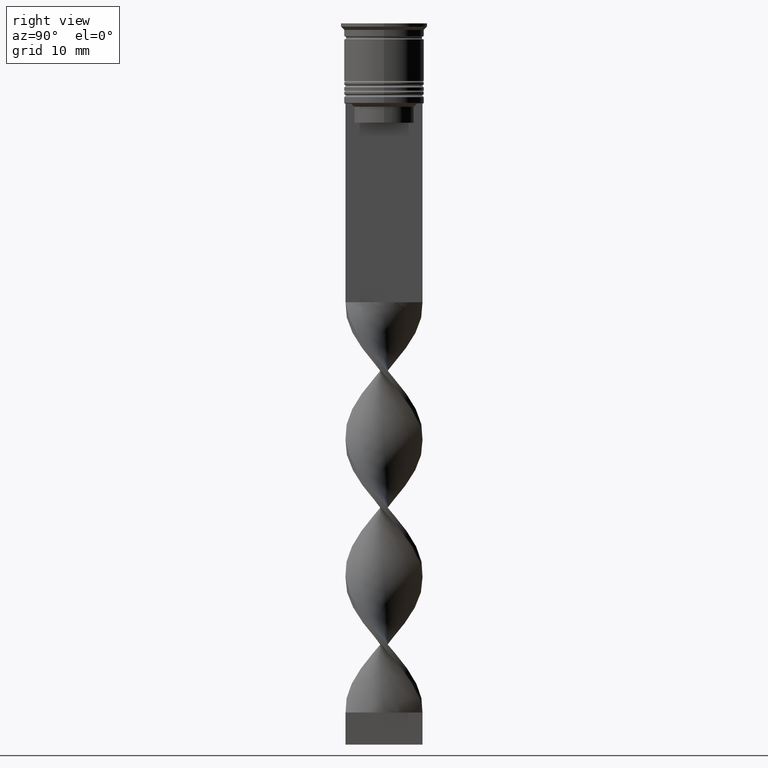
[diagram: clean part render]
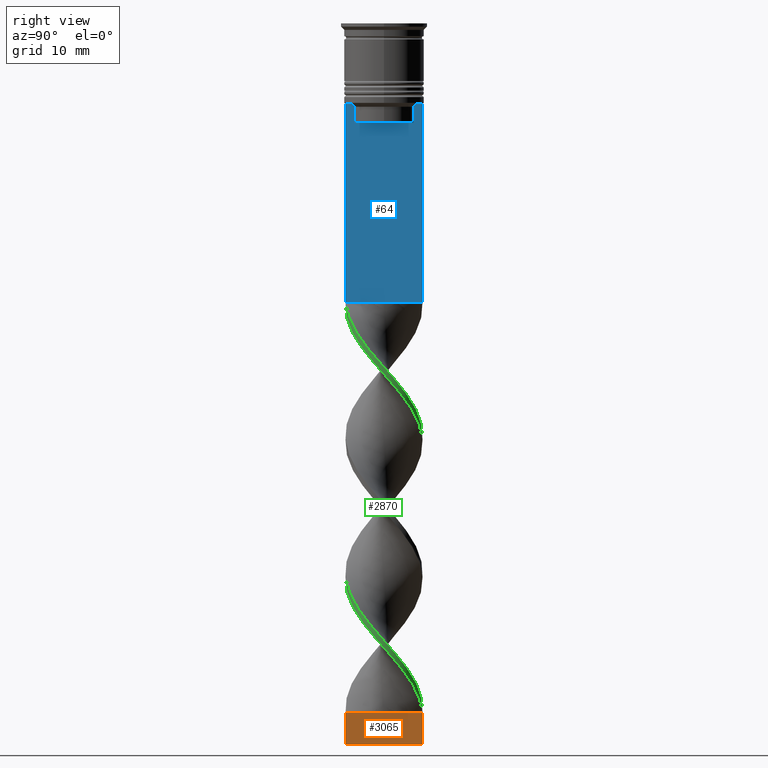
[diagram: same view with three faces highlighted in distinct colors, each labeled with its STEP entity id]
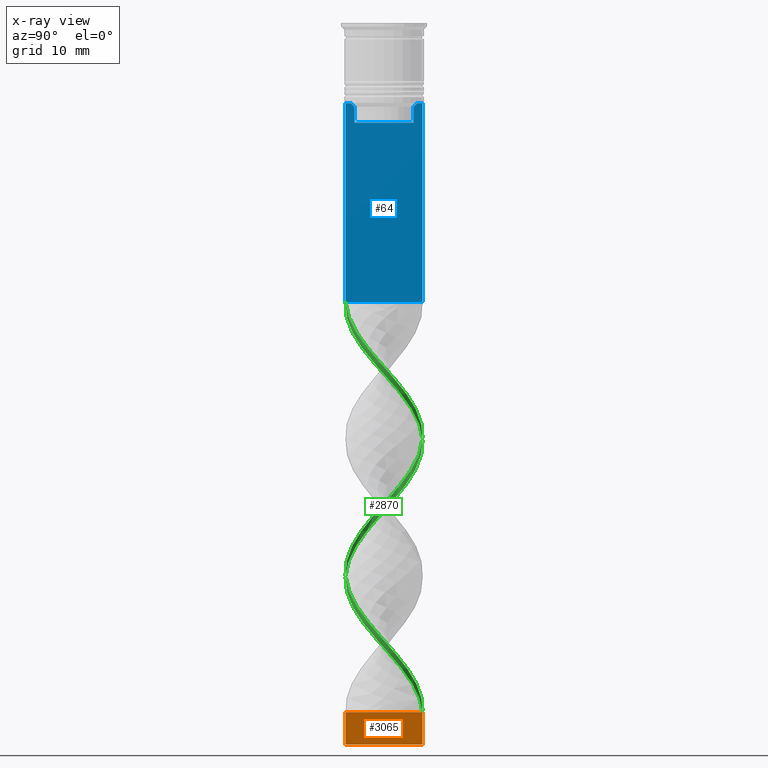
[diagram: x-ray of the same camera — body ghosted, the three highlighted faces saturated]
A machine part, right view with three faces highlighted in distinct colors.
The next image is the same camera in x-ray (body ghosted, the three faces saturated) — at least one of them is partly hidden behind the body in this view.
Their STEP definitions:

[orange] entity #3065 — the highlighted planar face has unit normal (-1, 0, 0).
#14 = EDGE_CURVE ( 'NONE', #60, #1473, #771, .T. ) ;
#32 = VECTOR ( 'NONE', #165, 1000.000000000000000 ) ;
#38 = CARTESIAN_POINT ( 'NONE',  ( 0.4999999999999990563, -6.000000000000000000, -112.5000000000000000 ) ) ;
#60 = VERTEX_POINT ( 'NONE', #104 ) ;
#104 = CARTESIAN_POINT ( 'NONE',  ( 0.5000000000000005551, 6.000000000000000000, -112.5000000000000000 ) ) ;
#165 = DIRECTION ( 'NONE',  ( -1.264902534566421675E-16, -1.000000000000000000, 0.000000000000000000 ) ) ;
#330 = AXIS2_PLACEMENT_3D ( 'NONE', #2009, #3090, #2868 ) ;
#436 = EDGE_CURVE ( 'NONE', #60, #448, #1466, .T. ) ;
#448 = VERTEX_POINT ( 'NONE', #2053 ) ;
#771 = LINE ( 'NONE', #1843, #1736 ) ;
#914 = PLANE ( 'NONE',  #330 ) ;
#1127 = DIRECTION ( 'NONE',  ( -0.000000000000000000, -0.000000000000000000, 1.000000000000000000 ) ) ;
#1221 = CARTESIAN_POINT ( 'NONE',  ( 0.5000000000000000000, 2.000000000000000000, -107.5000000000000000 ) ) ;
#1301 = DIRECTION ( 'NONE',  ( -0.000000000000000000, -0.000000000000000000, 1.000000000000000000 ) ) ;
#1466 = LINE ( 'NONE', #2308, #32 ) ;
#1473 = VERTEX_POINT ( 'NONE', #2409 ) ;
#1477 = CARTESIAN_POINT ( 'NONE',  ( 0.4999999999999990563, -6.000000000000000000, -107.5000000000000000 ) ) ;
#1736 = VECTOR ( 'NONE', #1301, 1000.000000000000000 ) ;
#1770 = ORIENTED_EDGE ( 'NONE', *, *, #14, .T. ) ;
#1781 = CARTESIAN_POINT ( 'NONE',  ( 0.5000000000000005551, 6.000000000000000000, -107.5000000000000000 ) ) ;
#1843 = CARTESIAN_POINT ( 'NONE',  ( 0.5000000000000005551, 6.000000000000000000, -112.5000000000000000 ) ) ;
#2009 = CARTESIAN_POINT ( 'NONE',  ( 0.5000000000000005551, 6.000000000000000000, -112.5000000000000000 ) ) ;
#2053 = CARTESIAN_POINT ( 'NONE',  ( 0.4999999999999990563, -6.000000000000000000, -112.5000000000000000 ) ) ;
#2086 = EDGE_CURVE ( 'NONE', #1473, #2617, #2331, .T. ) ;
#2091 = CARTESIAN_POINT ( 'NONE',  ( 0.4999999999999995559, -2.000000000000000000, -107.5000000000000000 ) ) ;
#2098 = VECTOR ( 'NONE', #1127, 1000.000000000000000 ) ;
#2252 = FACE_OUTER_BOUND ( 'NONE', #2817, .T. ) ;
#2308 = CARTESIAN_POINT ( 'NONE',  ( 0.5000000000000005551, 6.000000000000000000, -112.5000000000000000 ) ) ;
#2331 = B_SPLINE_CURVE_WITH_KNOTS ( 'NONE', 3,
 ( #1781, #1221, #2091, #2861 ),
 .UNSPECIFIED., .F., .F.,
 ( 4, 4 ),
 ( 0.000000000000000000, 1.000000000000000000 ),
 .UNSPECIFIED. ) ;
#2409 = CARTESIAN_POINT ( 'NONE',  ( 0.5000000000000005551, 6.000000000000000000, -107.5000000000000000 ) ) ;
#2617 = VERTEX_POINT ( 'NONE', #1477 ) ;
#2817 = EDGE_LOOP ( 'NONE', ( #3267, #2842, #3185, #1770 ) ) ;
#2842 = ORIENTED_EDGE ( 'NONE', *, *, #3398, .F. ) ;
#2861 = CARTESIAN_POINT ( 'NONE',  ( 0.4999999999999990563, -6.000000000000000000, -107.5000000000000000 ) ) ;
#2868 = DIRECTION ( 'NONE',  ( -1.264902534566421675E-16, -1.000000000000000000, 0.000000000000000000 ) ) ;
#3065 = ADVANCED_FACE ( 'NONE', ( #2252 ), #914, .F. ) ;
#3090 = DIRECTION ( 'NONE',  ( -1.000000000000000000, 1.264902534566421675E-16, 0.000000000000000000 ) ) ;
#3185 = ORIENTED_EDGE ( 'NONE', *, *, #436, .F. ) ;
#3267 = ORIENTED_EDGE ( 'NONE', *, *, #2086, .T. ) ;
#3302 = LINE ( 'NONE', #38, #2098 ) ;
#3398 = EDGE_CURVE ( 'NONE', #448, #2617, #3302, .T. ) ;

[blue] entity #64 — the highlighted planar face has unit normal (-1, 0, 0).
#25 = CARTESIAN_POINT ( 'NONE',  ( 0.5000000000000002220, -4.958169719475986170, -12.66670967060858111 ) ) ;
#62 = DIRECTION ( 'NONE',  ( 0.000000000000000000, -1.000000000000000000, 0.000000000000000000 ) ) ;
#64 = ADVANCED_FACE ( 'NONE', ( #683 ), #132, .F. ) ;
#85 = DIRECTION ( 'NONE',  ( 0.000000000000000000, -1.000000000000000000, 0.000000000000000000 ) ) ;
#132 = PLANE ( 'NONE',  #2364 ) ;
#157 = ORIENTED_EDGE ( 'NONE', *, *, #474, .T. ) ;
#172 = EDGE_LOOP ( 'NONE', ( #3371, #1901, #1513, #1337, #3414, #1471, #3104, #157, #2833, #1909 ) ) ;
#182 = CARTESIAN_POINT ( 'NONE',  ( 0.5000000000000002220, -6.000000000000000000, -0.4584054212077061097 ) ) ;
#204 = VERTEX_POINT ( 'NONE', #834 ) ;
#205 = CARTESIAN_POINT ( 'NONE',  ( 0.5000000000000002220, -4.623040125285526436, -13.00000000000000178 ) ) ;
#221 = DIRECTION ( 'NONE',  ( 0.000000000000000000, 0.000000000000000000, -1.000000000000000000 ) ) ;
#246 = LINE ( 'NONE', #2479, #1234 ) ;
#253 = CARTESIAN_POINT ( 'NONE',  ( 0.5000000000000002220, 4.623040125285526436, -13.00000000000000178 ) ) ;
#387 = VECTOR ( 'NONE', #85, 1000.000000000000000 ) ;
#474 = EDGE_CURVE ( 'NONE', #3131, #204, #3153, .T. ) ;
#590 = CARTESIAN_POINT ( 'NONE',  ( 0.5000000000000002220, 4.958169823806760412, -12.66670956677067927 ) ) ;
#663 = VERTEX_POINT ( 'NONE', #792 ) ;
#680 = LINE ( 'NONE', #1184, #3169 ) ;
#683 = FACE_OUTER_BOUND ( 'NONE', #172, .T. ) ;
#695 = EDGE_CURVE ( 'NONE', #2570, #1968, #1556, .T. ) ;
#753 = CARTESIAN_POINT ( 'NONE',  ( 0.5000000000000002220, -6.000000000000000000, -12.50000000000000000 ) ) ;
#784 = EDGE_CURVE ( 'NONE', #1968, #2849, #1783, .T. ) ;
#792 = CARTESIAN_POINT ( 'NONE',  ( 0.5000000000000002220, -5.125670687822231564, -12.50000000000000000 ) ) ;
#834 = CARTESIAN_POINT ( 'NONE',  ( 0.5000000000000002220, -5.999999999999999112, -43.50000000000000000 ) ) ;
#835 = DIRECTION ( 'NONE',  ( -0.000000000000000000, -0.000000000000000000, 1.000000000000000000 ) ) ;
#896 = CARTESIAN_POINT ( 'NONE',  ( 0.5000000000000002220, 4.790630915080664742, -12.83338087185995491 ) ) ;
#1065 = VERTEX_POINT ( 'NONE', #205 ) ;
#1093 = LINE ( 'NONE', #2504, #2725 ) ;
#1144 = EDGE_CURVE ( 'NONE', #1505, #1065, #1093, .T. ) ;
#1148 = CARTESIAN_POINT ( 'NONE',  ( 0.5000000000000002220, -5.125670687822231564, -12.50000000000000000 ) ) ;
#1184 = CARTESIAN_POINT ( 'NONE',  ( 0.5000000000000002220, -6.000000000000000000, -43.50000000000000000 ) ) ;
#1198 = EDGE_CURVE ( 'NONE', #1065, #663, #3321, .T. ) ;
#1234 = VECTOR ( 'NONE', #1669, 1000.000000000000000 ) ;
#1314 = CARTESIAN_POINT ( 'NONE',  ( 0.5000000000000002220, -6.000000000000000000, -0.4584054212077061097 ) ) ;
#1337 = ORIENTED_EDGE ( 'NONE', *, *, #1408, .T. ) ;
#1365 = CARTESIAN_POINT ( 'NONE',  ( 0.5000000000000002220, 5.125670687822231564, -12.50000000000000000 ) ) ;
#1408 = EDGE_CURVE ( 'NONE', #2854, #1505, #2803, .T. ) ;
#1427 = CARTESIAN_POINT ( 'NONE',  ( 0.5000000000000002220, 4.650000000000001243, -15.50000000000000000 ) ) ;
#1471 = ORIENTED_EDGE ( 'NONE', *, *, #1198, .T. ) ;
#1505 = VERTEX_POINT ( 'NONE', #1824 ) ;
#1513 = ORIENTED_EDGE ( 'NONE', *, *, #2964, .T. ) ;
#1556 = LINE ( 'NONE', #2650, #2662 ) ;
#1669 = DIRECTION ( 'NONE',  ( 0.000000000000000000, 0.000000000000000000, -1.000000000000000000 ) ) ;
#1716 = DIRECTION ( 'NONE',  ( 0.000000000000000000, 1.000000000000000000, 0.000000000000000000 ) ) ;
#1727 = CARTESIAN_POINT ( 'NONE',  ( 0.5000000000000002220, 5.125670687822231564, -12.50000000000000000 ) ) ;
#1783 = B_SPLINE_CURVE_WITH_KNOTS ( 'NONE', 3,
 ( #1365, #590, #896, #1954 ),
 .UNSPECIFIED., .F., .F.,
 ( 4, 4 ),
 ( 0.008759809102772709091, 0.009468778395565353653 ),
 .UNSPECIFIED. ) ;
#1824 = CARTESIAN_POINT ( 'NONE',  ( 0.5000000000000002220, -4.623040125285526436, -15.50000000000000000 ) ) ;
#1884 = EDGE_CURVE ( 'NONE', #663, #3131, #2506, .T. ) ;
#1901 = ORIENTED_EDGE ( 'NONE', *, *, #784, .T. ) ;
#1908 = CARTESIAN_POINT ( 'NONE',  ( 0.5000000000000002220, -4.623040125285526436, -13.00000000000000178 ) ) ;
#1909 = ORIENTED_EDGE ( 'NONE', *, *, #3375, .F. ) ;
#1951 = CARTESIAN_POINT ( 'NONE',  ( 0.5000000000000002220, -6.000000000000000000, -12.50000000000000000 ) ) ;
#1954 = CARTESIAN_POINT ( 'NONE',  ( 0.5000000000000002220, 4.623040125285526436, -13.00000000000000178 ) ) ;
#1968 = VERTEX_POINT ( 'NONE', #1727 ) ;
#1975 = LINE ( 'NONE', #2524, #2783 ) ;
#2364 = AXIS2_PLACEMENT_3D ( 'NONE', #1314, #2973, #2413 ) ;
#2413 = DIRECTION ( 'NONE',  ( 0.000000000000000000, 0.000000000000000000, 1.000000000000000000 ) ) ;
#2414 = CARTESIAN_POINT ( 'NONE',  ( 0.5000000000000002220, 6.000000000000000888, -43.50000000000000000 ) ) ;
#2443 = CARTESIAN_POINT ( 'NONE',  ( 0.5000000000000002220, 4.623040125285526436, -15.50000000000000000 ) ) ;
#2462 = CARTESIAN_POINT ( 'NONE',  ( 0.5000000000000002220, -4.790630799407577634, -12.83338098686238915 ) ) ;
#2479 = CARTESIAN_POINT ( 'NONE',  ( 0.5000000000000002220, 6.000000000000000888, -0.4584054212077061097 ) ) ;
#2504 = CARTESIAN_POINT ( 'NONE',  ( 0.5000000000000002220, -4.623040125285526436, 0.000000000000000000 ) ) ;
#2506 = LINE ( 'NONE', #1951, #3059 ) ;
#2524 = CARTESIAN_POINT ( 'NONE',  ( 0.5000000000000002220, 4.623040125285526436, 0.000000000000000000 ) ) ;
#2570 = VERTEX_POINT ( 'NONE', #3362 ) ;
#2650 = CARTESIAN_POINT ( 'NONE',  ( 0.5000000000000002220, -6.000000000000000000, -12.50000000000000000 ) ) ;
#2662 = VECTOR ( 'NONE', #3481, 1000.000000000000000 ) ;
#2725 = VECTOR ( 'NONE', #835, 1000.000000000000000 ) ;
#2783 = VECTOR ( 'NONE', #2851, 1000.000000000000000 ) ;
#2803 = LINE ( 'NONE', #1427, #387 ) ;
#2833 = ORIENTED_EDGE ( 'NONE', *, *, #2934, .T. ) ;
#2849 = VERTEX_POINT ( 'NONE', #253 ) ;
#2851 = DIRECTION ( 'NONE',  ( 0.000000000000000000, 0.000000000000000000, -1.000000000000000000 ) ) ;
#2854 = VERTEX_POINT ( 'NONE', #2443 ) ;
#2934 = EDGE_CURVE ( 'NONE', #204, #3461, #680, .T. ) ;
#2964 = EDGE_CURVE ( 'NONE', #2849, #2854, #1975, .T. ) ;
#2973 = DIRECTION ( 'NONE',  ( -1.000000000000000000, 0.000000000000000000, 0.000000000000000000 ) ) ;
#3059 = VECTOR ( 'NONE', #62, 1000.000000000000000 ) ;
#3104 = ORIENTED_EDGE ( 'NONE', *, *, #1884, .T. ) ;
#3131 = VERTEX_POINT ( 'NONE', #753 ) ;
#3153 = LINE ( 'NONE', #182, #3449 ) ;
#3169 = VECTOR ( 'NONE', #1716, 1000.000000000000000 ) ;
#3321 = B_SPLINE_CURVE_WITH_KNOTS ( 'NONE', 3,
 ( #1908, #2462, #25, #1148 ),
 .UNSPECIFIED., .F., .F.,
 ( 4, 4 ),
 ( 0.02203698174624554168, 0.02275222543365897770 ),
 .UNSPECIFIED. ) ;
#3362 = CARTESIAN_POINT ( 'NONE',  ( 0.5000000000000002220, 6.000000000000000888, -12.50000000000000000 ) ) ;
#3371 = ORIENTED_EDGE ( 'NONE', *, *, #695, .T. ) ;
#3375 = EDGE_CURVE ( 'NONE', #2570, #3461, #246, .T. ) ;
#3414 = ORIENTED_EDGE ( 'NONE', *, *, #1144, .T. ) ;
#3449 = VECTOR ( 'NONE', #221, 1000.000000000000000 ) ;
#3461 = VERTEX_POINT ( 'NONE', #2414 ) ;
#3481 = DIRECTION ( 'NONE',  ( 0.000000000000000000, -1.000000000000000000, 0.000000000000000000 ) ) ;

[green] entity #2870 — the highlighted face is a freeform B-spline surface patch.
#5 = CARTESIAN_POINT ( 'NONE',  ( 0.5000000000000005551, 6.000000000000000000, -107.5000000000000000 ) ) ;
#16 = CARTESIAN_POINT ( 'NONE',  ( 2.614197889543183884, 5.472697136436196708, -62.37179487179486870 ) ) ;
#21 = CARTESIAN_POINT ( 'NONE',  ( 5.221935568727516852, 2.996896547440106140, -100.9358974358974308 ) ) ;
#22 = CARTESIAN_POINT ( 'NONE',  ( 5.432795012591220996, 2.595137443597920424, -56.62820512820513130 ) ) ;
#30 = CARTESIAN_POINT ( 'NONE',  ( 5.787399899633756561, 1.660121200912505479, -99.29487179487178139 ) ) ;
#31 = CARTESIAN_POINT ( 'NONE',  ( -6.044068061194096231, -0.5036723384328406494, -75.50000000000000000 ) ) ;
#36 = CARTESIAN_POINT ( 'NONE',  ( 5.988975108237873712, -0.9574036273986643586, -52.52564102564103621 ) ) ;
#52 = CARTESIAN_POINT ( 'NONE',  ( 2.345611019436006472, 5.545097739941142301, -61.55128205128204399 ) ) ;
#57 = CARTESIAN_POINT ( 'NONE',  ( -4.858046446425391629, 3.630954320453866568, -70.57692307692306599 ) ) ;
#67 = CARTESIAN_POINT ( 'NONE',  ( 4.190053366537507706, 4.384962638200772034, -59.08974358974358410 ) ) ;
#75 = CARTESIAN_POINT ( 'NONE',  ( -0.4999999999999997780, -6.000000000000000000, -43.50000000000000000 ) ) ;
#82 = CARTESIAN_POINT ( 'NONE',  ( 0.5000000000000002220, -5.999999999999999112, -86.16666666666667140 ) ) ;
#126 = CARTESIAN_POINT ( 'NONE',  ( 4.352991323530322809, 4.159503159906207337, -59.91025641025640880 ) ) ;
#149 = CARTESIAN_POINT ( 'NONE',  ( -2.345611019436010025, -5.545097739941143189, -82.88461538461537259 ) ) ;
#170 = CARTESIAN_POINT ( 'NONE',  ( 2.345611019436006028, -5.545097739941144077, -46.78205128205127750 ) ) ;
#174 = CARTESIAN_POINT ( 'NONE',  ( 5.747901747727228283, 1.935476698729089007, -98.47435897435896379 ) ) ;
#191 = CARTESIAN_POINT ( 'NONE',  ( 3.847936200635250437, -4.688051999358553878, -90.26923076923075939 ) ) ;
#200 = CARTESIAN_POINT ( 'NONE',  ( 3.604480575359220396, -4.822625818147004750, -48.42307692307691269 ) ) ;
#204 = VERTEX_POINT ( 'NONE', #834 ) ;
#207 = CARTESIAN_POINT ( 'NONE',  ( 4.653870821996361151, 3.819880413333762714, -100.9358974358974308 ) ) ;
#217 = CARTESIAN_POINT ( 'NONE',  ( 0.5000000000000002220, -5.999999999999999112, -43.50000000000000000 ) ) ;
#224 = CARTESIAN_POINT ( 'NONE',  ( -5.585824691029640299, -2.362838774426345712, -78.78205128205127039 ) ) ;
#230 = CARTESIAN_POINT ( 'NONE',  ( 0.9504230770123207606, -5.945308736700090968, -45.14102564102563520 ) ) ;
#238 = CARTESIAN_POINT ( 'NONE',  ( -1.228531899333566768, -5.939289008388869640, -85.34615384615385381 ) ) ;
#252 = CARTESIAN_POINT ( 'NONE',  ( 4.352991323530322809, 4.159503159906207337, -102.5769230769230660 ) ) ;
#260 = CARTESIAN_POINT ( 'NONE',  ( 6.044068061194097119, -0.5036723384328415376, -96.83333333333332860 ) ) ;
#266 = CARTESIAN_POINT ( 'NONE',  ( -5.895984904460662257, 1.219574518580968325, -74.67948717948718240 ) ) ;
#281 = VERTEX_POINT ( 'NONE', #934 ) ;
#282 = CARTESIAN_POINT ( 'NONE',  ( 3.604480575359220396, -4.822625818147004750, -91.08974358974359120 ) ) ;
#283 = CARTESIAN_POINT ( 'NONE',  ( 2.614197889543182107, -5.472697136436196708, -45.96153846153845990 ) ) ;
#286 = CARTESIAN_POINT ( 'NONE',  ( 5.432795012591220107, -2.595137443597922200, -94.37179487179486159 ) ) ;
#287 = CARTESIAN_POINT ( 'NONE',  ( 3.604480575359221728, 4.822625818147002974, -59.91025641025640880 ) ) ;
#296 = CARTESIAN_POINT ( 'NONE',  ( -3.604480575359219507, 4.822625818147005639, -69.75641025641024839 ) ) ;
#298 = CARTESIAN_POINT ( 'NONE',  ( 1.228531899333563215, -5.939289008388868751, -86.98717948717948900 ) ) ;
#302 = CARTESIAN_POINT ( 'NONE',  ( 5.787399899633756561, -1.660121200912507478, -51.70512820512820440 ) ) ;
#312 = CARTESIAN_POINT ( 'NONE',  ( -5.432795012591220107, 2.595137443597922644, -73.03846153846153300 ) ) ;
#315 = CARTESIAN_POINT ( 'NONE',  ( 4.653870821996360263, 3.819880413333762270, -100.9358974358974308 ) ) ;
#320 = CARTESIAN_POINT ( 'NONE',  ( -3.847936200635249993, 4.688051999358554767, -68.93589743589743080 ) ) ;
#335 = CARTESIAN_POINT ( 'NONE',  ( 6.016521584715985860, 0.2268656444829105501, -97.65384615384614619 ) ) ;
#337 = CARTESIAN_POINT ( 'NONE',  ( -3.018907784180934861, -5.260288998093234802, -82.06410256410255499 ) ) ;
#352 = CARTESIAN_POINT ( 'NONE',  ( -1.228531899333561883, 5.939289008388868751, -65.65384615384614619 ) ) ;
#366 = CARTESIAN_POINT ( 'NONE',  ( 3.847936200635249993, -4.688051999358552990, -90.26923076923077360 ) ) ;
#421 = CARTESIAN_POINT ( 'NONE',  ( 3.604480575359220396, -4.822625818147004750, -48.42307692307691269 ) ) ;
#441 = CARTESIAN_POINT ( 'NONE',  ( 3.604480575359221728, 4.822625818147002974, -102.5769230769230660 ) ) ;
#466 = CARTESIAN_POINT ( 'NONE',  ( 5.221935568727516852, 2.996896547440106140, -58.26923076923076650 ) ) ;
#484 = CARTESIAN_POINT ( 'NONE',  ( 3.018907784180935305, 5.260288998093234802, -103.3974358974358694 ) ) ;
#496 = CARTESIAN_POINT ( 'NONE',  ( 5.221935568727516852, 2.996896547440106140, -58.26923076923076650 ) ) ;
#500 = CARTESIAN_POINT ( 'NONE',  ( -1.672314254691080304, -5.829906481789053352, -83.70512820512820440 ) ) ;
#514 = CARTESIAN_POINT ( 'NONE',  ( 1.921364894438374549, 5.705993072412533174, -63.19230769230768630 ) ) ;
#526 = CARTESIAN_POINT ( 'NONE',  ( 5.787399899633755673, -1.660121200912507033, -51.70512820512820440 ) ) ;
#531 = CARTESIAN_POINT ( 'NONE',  ( 0.5000000000000002220, -6.000000000000000000, -43.50000000000000000 ) ) ;
#545 = CARTESIAN_POINT ( 'NONE',  ( -3.018907784180933973, 5.260288998093236579, -68.93589743589743080 ) ) ;
#555 = CARTESIAN_POINT ( 'NONE',  ( -4.352991323530323697, -4.159503159906206449, -81.24358974358973740 ) ) ;
#561 = CARTESIAN_POINT ( 'NONE',  ( 0.2285318993335633819, -6.060710991611130360, -86.98717948717948900 ) ) ;
#575 = CARTESIAN_POINT ( 'NONE',  ( 3.018907784180934861, -5.260288998093235691, -90.26923076923075939 ) ) ;
#577 = CARTESIAN_POINT ( 'NONE',  ( 5.117688277455212820, 3.254798188466753395, -100.1153846153846132 ) ) ;
#592 = CARTESIAN_POINT ( 'NONE',  ( -5.895984904460662257, 1.219574518580968325, -74.67948717948718240 ) ) ;
#594 = CARTESIAN_POINT ( 'NONE',  ( -0.9504230770123257566, -5.945308736700090080, -84.52564102564103621 ) ) ;
#599 = CARTESIAN_POINT ( 'NONE',  ( -5.221935568727515964, 2.996896547440107472, -71.39743589743588359 ) ) ;
#608 = CARTESIAN_POINT ( 'NONE',  ( 5.221935568727516852, 2.996896547440106140, -100.9358974358974308 ) ) ;
#609 = CARTESIAN_POINT ( 'NONE',  ( 1.672314254691078972, 5.829906481789051576, -105.0384615384615188 ) ) ;
#630 = CARTESIAN_POINT ( 'NONE',  ( 5.432795012591220107, 2.595137443597919980, -99.29487179487178139 ) ) ;
#645 = CARTESIAN_POINT ( 'NONE',  ( -3.231067045089215384, 5.080374567897374405, -68.11538461538459899 ) ) ;
#689 = CARTESIAN_POINT ( 'NONE',  ( 2.614197889543183884, 5.472697136436196708, -62.37179487179486870 ) ) ;
#693 = CARTESIAN_POINT ( 'NONE',  ( -0.4999999999999994449, 6.000000000000000000, -107.5000000000000000 ) ) ;
#709 = CARTESIAN_POINT ( 'NONE',  ( 5.117688277455213708, -3.254798188466753839, -50.88461538461538680 ) ) ;
#730 = CARTESIAN_POINT ( 'NONE',  ( 5.988975108237873712, 0.9574036273986641365, -55.80769230769230660 ) ) ;
#747 = CARTESIAN_POINT ( 'NONE',  ( 5.117688277455213708, -3.254798188466753839, -50.88461538461537970 ) ) ;
#751 = CARTESIAN_POINT ( 'NONE',  ( -0.4999999999999997780, -6.000000000000000000, -43.50000000000000000 ) ) ;
#769 = CARTESIAN_POINT ( 'NONE',  ( 0.5000000000000002220, -6.000000000000000000, -86.16666666666667140 ) ) ;
#782 = CARTESIAN_POINT ( 'NONE',  ( -4.653870821996360263, 3.819880413333763158, -71.39743589743588359 ) ) ;
#783 = CARTESIAN_POINT ( 'NONE',  ( 4.653870821996361151, 3.819880413333762714, -58.26923076923076650 ) ) ;
#811 = CARTESIAN_POINT ( 'NONE',  ( 5.585824691029640299, 2.362838774426348376, -100.1153846153846274 ) ) ;
#816 = CARTESIAN_POINT ( 'NONE',  ( 5.988975108237873712, 0.9574036273986640255, -98.47435897435896379 ) ) ;
#825 = CARTESIAN_POINT ( 'NONE',  ( 0.5000000000000005551, 6.000000000000000000, -64.83333333333332860 ) ) ;
#826 = CARTESIAN_POINT ( 'NONE',  ( 6.044068061194096231, 0.5036723384328413156, -54.16666666666666430 ) ) ;
#829 = CARTESIAN_POINT ( 'NONE',  ( -5.988975108237874601, -0.9574036273986618051, -77.14102564102563520 ) ) ;
#831 = CARTESIAN_POINT ( 'NONE',  ( 5.117688277455213708, 3.254798188466753395, -57.44871794871794890 ) ) ;
#834 = CARTESIAN_POINT ( 'NONE',  ( 0.5000000000000002220, -5.999999999999999112, -43.50000000000000000 ) ) ;
#841 = CARTESIAN_POINT ( 'NONE',  ( -6.016521584715984972, -0.2268656444829071639, -76.32051282051281760 ) ) ;
#843 = CARTESIAN_POINT ( 'NONE',  ( -4.352991323530320145, 4.159503159906209113, -69.75641025641024839 ) ) ;
#848 = CARTESIAN_POINT ( 'NONE',  ( 3.231067045089216716, 5.080374567897374405, -104.2179487179487012 ) ) ;
#867 = CARTESIAN_POINT ( 'NONE',  ( -0.2285318993335620774, 6.060710991611129472, -65.65384615384614619 ) ) ;
#868 = CARTESIAN_POINT ( 'NONE',  ( 1.921364894438372550, -5.705993072412533174, -87.80769230769230660 ) ) ;
#872 = CARTESIAN_POINT ( 'NONE',  ( -5.787399899633756561, 1.660121200912507922, -73.03846153846153300 ) ) ;
#881 = CARTESIAN_POINT ( 'NONE',  ( -3.231067045089219825, -5.080374567897373517, -82.88461538461537259 ) ) ;
#883 = CARTESIAN_POINT ( 'NONE',  ( 2.345611019436006472, 5.545097739941142301, -104.2179487179487012 ) ) ;
#898 = CARTESIAN_POINT ( 'NONE',  ( -5.787399899633755673, 1.660121200912507478, -73.03846153846153300 ) ) ;
#916 = CARTESIAN_POINT ( 'NONE',  ( -5.432795012591220107, -2.595137443597920868, -77.96153846153845279 ) ) ;
#934 = CARTESIAN_POINT ( 'NONE',  ( -0.4999999999999994449, 5.999999999999999112, -107.5000000000000000 ) ) ;
#954 = CARTESIAN_POINT ( 'NONE',  ( 1.672314254691077640, -5.829906481789053352, -45.96153846153845990 ) ) ;
#976 = CARTESIAN_POINT ( 'NONE',  ( -3.604480575359222616, -4.822625818147002086, -81.24358974358973740 ) ) ;
#993 = CARTESIAN_POINT ( 'NONE',  ( 2.345611019436006917, 5.545097739941143189, -104.2179487179487012 ) ) ;
#1007 = CARTESIAN_POINT ( 'NONE',  ( 5.432795012591220107, -2.595137443597922200, -51.70512820512820440 ) ) ;
#1031 = CARTESIAN_POINT ( 'NONE',  ( 0.2285318993335633819, -6.060710991611129472, -44.32051282051282470 ) ) ;
#1037 = CARTESIAN_POINT ( 'NONE',  ( 3.231067045089215828, -5.080374567897374405, -46.78205128205127750 ) ) ;
#1040 = CARTESIAN_POINT ( 'NONE',  ( 4.653870821996360263, -3.819880413333763158, -92.73076923076922640 ) ) ;
#1055 = CARTESIAN_POINT ( 'NONE',  ( -4.190053366537505042, 4.384962638200774698, -70.57692307692306599 ) ) ;
#1068 = CARTESIAN_POINT ( 'NONE',  ( -5.221935568727517740, -2.996896547440105252, -79.60256410256410220 ) ) ;
#1076 = CARTESIAN_POINT ( 'NONE',  ( 5.787399899633756561, 1.660121200912505479, -99.29487179487178139 ) ) ;
#1077 = CARTESIAN_POINT ( 'NONE',  ( 5.895984904460662257, 1.219574518580964551, -54.98717948717948190 ) ) ;
#1084 = CARTESIAN_POINT ( 'NONE',  ( 1.921364894438374549, 5.705993072412533174, -63.19230769230768630 ) ) ;
#1091 = CARTESIAN_POINT ( 'NONE',  ( 5.221935568727515964, -2.996896547440107472, -50.06410256410256210 ) ) ;
#1100 = CARTESIAN_POINT ( 'NONE',  ( -2.345611019436006028, 5.545097739941144077, -68.11538461538459899 ) ) ;
#1102 = CARTESIAN_POINT ( 'NONE',  ( 0.2285318993335655469, 6.060710991611129472, -106.6794871794871824 ) ) ;
#1105 = CARTESIAN_POINT ( 'NONE',  ( -5.221935568727517740, -2.996896547440105252, -79.60256410256410220 ) ) ;
#1106 = CARTESIAN_POINT ( 'NONE',  ( 2.345611019436006917, 5.545097739941143189, -61.55128205128204399 ) ) ;
#1116 = CARTESIAN_POINT ( 'NONE',  ( -1.921364894438377657, -5.705993072412531397, -84.52564102564103621 ) ) ;
#1117 = CARTESIAN_POINT ( 'NONE',  ( 5.117688277455212820, 3.254798188466753395, -57.44871794871794890 ) ) ;
#1125 = CARTESIAN_POINT ( 'NONE',  ( 5.747901747727228283, 1.935476698729089007, -55.80769230769230660 ) ) ;
#1141 = CARTESIAN_POINT ( 'NONE',  ( -3.604480575359221728, -4.822625818147002086, -81.24358974358973740 ) ) ;
#1153 = CARTESIAN_POINT ( 'NONE',  ( -4.653870821996361151, -3.819880413333761826, -79.60256410256410220 ) ) ;
#1166 = CARTESIAN_POINT ( 'NONE',  ( 0.9504230770123223149, 5.945308736700090080, -105.8589743589743506 ) ) ;
#1200 = VERTEX_POINT ( 'NONE', #75 ) ;
#1228 = CARTESIAN_POINT ( 'NONE',  ( 6.016521584715985860, -0.2268656444829121599, -96.01282051282051100 ) ) ;
#1243 = CARTESIAN_POINT ( 'NONE',  ( 4.190053366537506818, -4.384962638200773810, -49.24358974358974450 ) ) ;
#1247 = CARTESIAN_POINT ( 'NONE',  ( 5.585824691029640299, -2.362838774426348820, -93.55128205128204399 ) ) ;
#1263 = CARTESIAN_POINT ( 'NONE',  ( 4.858046446425394294, 3.630954320453863016, -59.08974358974359120 ) ) ;
#1275 = CARTESIAN_POINT ( 'NONE',  ( 5.585824691029639411, 2.362838774426348376, -57.44871794871794890 ) ) ;
#1279 = CARTESIAN_POINT ( 'NONE',  ( -5.988975108237873712, 0.9574036273986639145, -73.85897435897436480 ) ) ;
#1293 = CARTESIAN_POINT ( 'NONE',  ( 5.585824691029639411, 2.362838774426348376, -100.1153846153846132 ) ) ;
#1299 = CARTESIAN_POINT ( 'NONE',  ( 5.117688277455213708, 3.254798188466753395, -100.1153846153846274 ) ) ;
#1307 = CARTESIAN_POINT ( 'NONE',  ( -4.352991323530323697, -4.159503159906206449, -81.24358974358973740 ) ) ;
#1318 = CARTESIAN_POINT ( 'NONE',  ( 6.016521584715984972, -0.2268656444829120489, -53.34615384615383959 ) ) ;
#1331 = CARTESIAN_POINT ( 'NONE',  ( 5.117688277455213708, -3.254798188466753839, -93.55128205128204399 ) ) ;
#1341 = CARTESIAN_POINT ( 'NONE',  ( 1.228531899333565880, 5.939289008388869640, -64.01282051282051100 ) ) ;
#1354 = CARTESIAN_POINT ( 'NONE',  ( 2.614197889543183884, 5.472697136436196708, -105.0384615384615330 ) ) ;
#1359 = CARTESIAN_POINT ( 'NONE',  ( 4.190053366537506818, -4.384962638200773810, -91.91025641025643722 ) ) ;
#1360 = CARTESIAN_POINT ( 'NONE',  ( 3.018907784180935305, 5.260288998093234802, -60.73076923076922640 ) ) ;
#1368 = CARTESIAN_POINT ( 'NONE',  ( -5.747901747727229171, 1.935476698729089007, -73.85897435897436480 ) ) ;
#1370 = CARTESIAN_POINT ( 'NONE',  ( -2.614197889543180331, 5.472697136436197596, -67.29487179487178139 ) ) ;
#1386 = CARTESIAN_POINT ( 'NONE',  ( 0.9504230770123207606, -5.945308736700090968, -87.80769230769230660 ) ) ;
#1387 = CARTESIAN_POINT ( 'NONE',  ( 4.190053366537507706, 4.384962638200772034, -101.7564102564102484 ) ) ;
#1395 = CARTESIAN_POINT ( 'NONE',  ( -4.352991323530321033, 4.159503159906210001, -69.75641025641024839 ) ) ;
#1407 = CARTESIAN_POINT ( 'NONE',  ( -6.044068061194097119, 0.5036723384328423148, -75.49999999999998579 ) ) ;
#1409 = CARTESIAN_POINT ( 'NONE',  ( 2.614197889543182107, -5.472697136436196708, -88.62820512820512420 ) ) ;
#1425 = CARTESIAN_POINT ( 'NONE',  ( -2.345611019436009581, -5.545097739941142301, -82.88461538461537259 ) ) ;
#1435 = CARTESIAN_POINT ( 'NONE',  ( -0.4999999999999994449, 5.999999999999999112, -107.5000000000000000 ) ) ;
#1440 = CARTESIAN_POINT ( 'NONE',  ( 5.221935568727515076, -2.996896547440107028, -92.73076923076922640 ) ) ;
#1473 = VERTEX_POINT ( 'NONE', #2409 ) ;
#1491 = CARTESIAN_POINT ( 'NONE',  ( 4.653870821996360263, -3.819880413333763158, -50.06410256410256210 ) ) ;
#1512 = CARTESIAN_POINT ( 'NONE',  ( -5.117688277455215484, -3.254798188466751174, -78.78205128205127039 ) ) ;
#1535 = CARTESIAN_POINT ( 'NONE',  ( -4.653870821996362039, -3.819880413333761826, -79.60256410256410220 ) ) ;
#1554 = CARTESIAN_POINT ( 'NONE',  ( 3.018907784180934861, -5.260288998093235691, -47.60256410256408799 ) ) ;
#1559 = CARTESIAN_POINT ( 'NONE',  ( 4.352991323530321033, -4.159503159906209113, -48.42307692307691269 ) ) ;
#1564 = CARTESIAN_POINT ( 'NONE',  ( -1.921364894438377657, -5.705993072412531397, -84.52564102564103621 ) ) ;
#1571 = CARTESIAN_POINT ( 'NONE',  ( -5.895984904460663145, -1.219574518580961442, -76.32051282051281760 ) ) ;
#1587 = CARTESIAN_POINT ( 'NONE',  ( -3.847936200635251325, -4.688051999358552990, -82.06410256410255499 ) ) ;
#1595 = CARTESIAN_POINT ( 'NONE',  ( 5.988975108237873712, -0.9574036273986640255, -52.52564102564102910 ) ) ;
#1599 = CARTESIAN_POINT ( 'NONE',  ( 2.614197889543183884, 5.472697136436196708, -105.0384615384615188 ) ) ;
#1601 = CARTESIAN_POINT ( 'NONE',  ( 1.228531899333563659, -5.939289008388869640, -44.32051282051282470 ) ) ;
#1616 = CARTESIAN_POINT ( 'NONE',  ( 3.604480575359220396, -4.822625818147004750, -91.08974358974359120 ) ) ;
#1626 = CARTESIAN_POINT ( 'NONE',  ( 1.672314254691077862, -5.829906481789053352, -88.62820512820513841 ) ) ;
#1635 = CARTESIAN_POINT ( 'NONE',  ( 0.9504230770123207606, -5.945308736700090968, -87.80769230769230660 ) ) ;
#1645 = CARTESIAN_POINT ( 'NONE',  ( -2.614197889543184328, -5.472697136436196708, -83.70512820512820440 ) ) ;
#1647 = CARTESIAN_POINT ( 'NONE',  ( -3.847936200635249104, 4.688051999358553878, -68.93589743589743080 ) ) ;
#1651 = CARTESIAN_POINT ( 'NONE',  ( 1.921364894438372772, -5.705993072412534062, -45.14102564102563520 ) ) ;
#1660 = CARTESIAN_POINT ( 'NONE',  ( 1.228531899333566102, 5.939289008388869640, -106.6794871794871682 ) ) ;
#1663 = CARTESIAN_POINT ( 'NONE',  ( -1.672314254691079416, -5.829906481789051576, -83.70512820512820440 ) ) ;
#1667 = CARTESIAN_POINT ( 'NONE',  ( 0.2285318993335656579, 6.060710991611129472, -64.01282051282051100 ) ) ;
#1678 = CARTESIAN_POINT ( 'NONE',  ( 3.231067045089216716, 5.080374567897374405, -104.2179487179487012 ) ) ;
#1680 = CARTESIAN_POINT ( 'NONE',  ( 5.747901747727227395, 1.935476698729089229, -55.80769230769230660 ) ) ;
#1700 = CARTESIAN_POINT ( 'NONE',  ( 4.858046446425392517, -3.630954320453864348, -91.91025641025643722 ) ) ;
#1717 = CARTESIAN_POINT ( 'NONE',  ( -5.895984904460662257, -1.219574518580961220, -76.32051282051281760 ) ) ;
#1769 = CARTESIAN_POINT ( 'NONE',  ( 1.672314254691077862, -5.829906481789053352, -45.96153846153845279 ) ) ;
#1786 = CARTESIAN_POINT ( 'NONE',  ( 1.921364894438372772, -5.705993072412534062, -87.80769230769230660 ) ) ;
#1799 = CARTESIAN_POINT ( 'NONE',  ( 6.016521584715985860, 0.2268656444829105501, -54.98717948717948190 ) ) ;
#1805 = CARTESIAN_POINT ( 'NONE',  ( 5.787399899633756561, 1.660121200912505479, -56.62820512820513130 ) ) ;
#1821 = CARTESIAN_POINT ( 'NONE',  ( 5.988975108237873712, 0.9574036273986640255, -55.80769230769230660 ) ) ;
#1827 = CARTESIAN_POINT ( 'NONE',  ( 4.352991323530322809, 4.159503159906207337, -59.91025641025640880 ) ) ;
#1837 = CARTESIAN_POINT ( 'NONE',  ( 3.018907784180934417, -5.260288998093235691, -47.60256410256409509 ) ) ;
#1841 = CARTESIAN_POINT ( 'NONE',  ( 2.614197889543182107, -5.472697136436197596, -88.62820512820513841 ) ) ;
#1846 = EDGE_CURVE ( 'NONE', #281, #1473, #1872, .T. ) ;
#1853 = CARTESIAN_POINT ( 'NONE',  ( 0.5000000000000005551, 6.000000000000000000, -64.83333333333332860 ) ) ;
#1872 = B_SPLINE_CURVE_WITH_KNOTS ( 'NONE', 3,
 ( #1435, #3305, #3102, #2269 ),
 .UNSPECIFIED., .F., .F.,
 ( 4, 4 ),
 ( 0.000000000000000000, 1.000000000000000000 ),
 .UNSPECIFIED. ) ;
#1873 = CARTESIAN_POINT ( 'NONE',  ( 5.221935568727515076, -2.996896547440107028, -50.06410256410256210 ) ) ;
#1877 = CARTESIAN_POINT ( 'NONE',  ( -0.9504230770123187622, 5.945308736700090968, -66.47435897435896379 ) ) ;
#1891 = CARTESIAN_POINT ( 'NONE',  ( 5.747901747727229171, -1.935476698729089451, -95.19230769230769340 ) ) ;
#1900 = CARTESIAN_POINT ( 'NONE',  ( -1.672314254691075641, 5.829906481789053352, -67.29487179487178139 ) ) ;
#1902 = CARTESIAN_POINT ( 'NONE',  ( 5.895984904460661369, 1.219574518580964329, -54.98717948717948190 ) ) ;
#1905 = CARTESIAN_POINT ( 'NONE',  ( -0.2285318993335620774, 6.060710991611130360, -65.65384615384614619 ) ) ;
#1906 = CARTESIAN_POINT ( 'NONE',  ( 4.190053366537507706, 4.384962638200771146, -59.08974358974359120 ) ) ;
#1917 = CARTESIAN_POINT ( 'NONE',  ( -5.787399899633756561, -1.660121200912506367, -77.96153846153845279 ) ) ;
#1921 = CARTESIAN_POINT ( 'NONE',  ( 3.231067045089215828, -5.080374567897374405, -89.44871794871794179 ) ) ;
#1927 = CARTESIAN_POINT ( 'NONE',  ( 6.016521584715985860, 0.2268656444829105501, -97.65384615384614619 ) ) ;
#1928 = FACE_OUTER_BOUND ( 'NONE', #3355, .T. ) ;
#1938 = CARTESIAN_POINT ( 'NONE',  ( 4.653870821996360263, -3.819880413333763158, -92.73076923076922640 ) ) ;
#1941 = CARTESIAN_POINT ( 'NONE',  ( 5.988975108237873712, -0.9574036273986640255, -95.19230769230769340 ) ) ;
#1945 = CARTESIAN_POINT ( 'NONE',  ( -0.4999999999999994449, 6.000000000000000000, -64.83333333333332860 ) ) ;
#1957 = CARTESIAN_POINT ( 'NONE',  ( -3.018907784180934417, 5.260288998093236579, -68.93589743589743080 ) ) ;
#1959 = CARTESIAN_POINT ( 'NONE',  ( 3.604480575359220840, 4.822625818147002086, -59.91025641025640880 ) ) ;
#1976 = CARTESIAN_POINT ( 'NONE',  ( -6.016521584715984972, 0.2268656444829141028, -74.67948717948718240 ) ) ;
#1995 = CARTESIAN_POINT ( 'NONE',  ( 0.2285318993335655469, 6.060710991611129472, -64.01282051282051100 ) ) ;
#2010 = CARTESIAN_POINT ( 'NONE',  ( 0.5000000000000002220, -6.000000000000000000, -43.50000000000000000 ) ) ;
#2038 = CARTESIAN_POINT ( 'NONE',  ( 3.847936200635250881, 4.688051999358552990, -60.73076923076922640 ) ) ;
#2043 = CARTESIAN_POINT ( 'NONE',  ( 4.858046446425393405, -3.630954320453865236, -91.91025641025643722 ) ) ;
#2059 = CARTESIAN_POINT ( 'NONE',  ( -3.018907784180935749, -5.260288998093234802, -82.06410256410255499 ) ) ;
#2072 = CARTESIAN_POINT ( 'NONE',  ( 6.044068061194097119, -0.5036723384328415376, -54.16666666666666430 ) ) ;
#2077 = CARTESIAN_POINT ( 'NONE',  ( 6.044068061194097119, -0.5036723384328415376, -54.16666666666665719 ) ) ;
#2097 = CARTESIAN_POINT ( 'NONE',  ( -5.432795012591220996, -2.595137443597921312, -77.96153846153845279 ) ) ;
#2108 = EDGE_CURVE ( 'NONE', #1200, #1473, #2488, .T. ) ;
#2110 =( BOUNDED_CURVE ( )  B_SPLINE_CURVE ( 2, ( #217, #2403, #2980, #283, #1037, #2174, #1559, #2657, #1873, #3260, #526, #1595, #1318, #826, #1902, #1680, #2493, #1117, #3273, #67, #1959, #2745, #52, #2511, #2253, #1995, #3075, #352, #2205, #1370, #645, #1647, #843, #2188, #3295, #2471, #898, #2801, #1976, #31, #1717, #2239, #916, #2785, #1153, #3010, #1141, #337, #1425, #1663, #594, #2815, #82, #298, #868, #1409, #1921, #366, #3327, #1700, #1440, #3039, #2224, #1941, #3025, #3057, #2541, #2764, #630, #577, #315, #1387, #2525, #3312, #883, #609, #1166, #1102, #3347 ),
 .UNSPECIFIED., .F., .T. ) 
 B_SPLINE_CURVE_WITH_KNOTS ( ( 3, 2, 2, 2, 2, 2, 2, 2, 2, 2, 2, 2, 2, 2, 2, 2, 2, 2, 2, 2, 2, 2, 2, 2, 2, 2, 2, 2, 2, 2, 2, 2, 2, 2, 2, 2, 2, 2, 2, 3 ),
 ( 0.000000000000000000, 0.01923076923076923184, 0.03846153846153846367, 0.05769230769230768857, 0.07692307692307692735, 0.09615384615384615918, 0.1153846153846153771, 0.1346153846153846090, 0.1538461538461538547, 0.1730769230769230449, 0.1923076923076923184, 0.2115384615384615363, 0.2307692307692307543, 0.2500000000000000000, 0.2692307692307692180, 0.2884615384615384359, 0.3076923076923077094, 0.3269230769230769273, 0.3461538461538460898, 0.3653846153846153633, 0.3846153846153846367, 0.4038461538461539102, 0.4230769230769230727, 0.4423076923076922906, 0.4615384615384615086, 0.4807692307692307820, 0.5000000000000000000, 0.5192307692307692735, 0.5384615384615384359, 0.5576923076923077094, 0.5769230769230768718, 0.5961538461538461453, 0.6153846153846154188, 0.6346153846153845812, 0.6538461538461538547, 0.6730769230769230171, 0.6923076923076921796, 0.7115384615384615641, 0.7307692307692307265, 0.7500000000000000000 ),
 .UNSPECIFIED. ) 
 CURVE ( )  GEOMETRIC_REPRESENTATION_ITEM ( )  RATIONAL_B_SPLINE_CURVE ( ( 1.000000000000000000, 0.9927088740980539727, 1.000000000000000000, 0.9927088740980539727, 1.000000000000000000, 0.9927088740980539727, 1.000000000000000000, 0.9927088740980539727, 1.000000000000000000, 0.9927088740980539727, 1.000000000000000000, 0.9927088740980539727, 1.000000000000000000, 0.9927088740980539727, 1.000000000000000000, 0.9927088740980539727, 1.000000000000000000, 0.9927088740980539727, 1.000000000000000000, 0.9927088740980539727, 1.000000000000000000, 0.9927088740980539727, 1.000000000000000000, 0.9927088740980539727, 1.000000000000000000, 0.9927088740980539727, 1.000000000000000000, 0.9927088740980539727, 1.000000000000000000, 0.9927088740980539727, 1.000000000000000000, 0.9927088740980539727, 1.000000000000000000, 0.9927088740980539727, 1.000000000000000000, 0.9927088740980539727, 1.000000000000000000, 0.9927088740980539727, 1.000000000000000000, 0.9927088740980539727, 1.000000000000000000, 0.9927088740980539727, 1.000000000000000000, 0.9927088740980539727, 1.000000000000000000, 0.9927088740980539727, 1.000000000000000000, 0.9927088740980539727, 1.000000000000000000, 0.9927088740980539727, 1.000000000000000000, 0.9927088740980539727, 1.000000000000000000, 0.9927088740980539727, 1.000000000000000000, 0.9927088740980539727, 1.000000000000000000, 0.9927088740980539727, 1.000000000000000000, 0.9927088740980539727, 1.000000000000000000, 0.9927088740980539727, 1.000000000000000000, 0.9927088740980539727, 1.000000000000000000, 0.9927088740980539727, 1.000000000000000000, 0.9927088740980539727, 1.000000000000000000, 0.9927088740980539727, 1.000000000000000000, 0.9927088740980539727, 1.000000000000000000, 0.9927088740980539727, 1.000000000000000000, 0.9927088740980539727, 1.000000000000000000, 0.9927088740980539727, 1.000000000000000000 ) ) 
 REPRESENTATION_ITEM ( '' )  );
#2112 = CARTESIAN_POINT ( 'NONE',  ( 5.747901747727229171, -1.935476698729089451, -52.52564102564102910 ) ) ;
#2117 = CARTESIAN_POINT ( 'NONE',  ( -6.016521584715985860, 0.2268656444829142138, -74.67948717948718240 ) ) ;
#2141 = CARTESIAN_POINT ( 'NONE',  ( -5.747901747727229171, 1.935476698729089229, -73.85897435897436480 ) ) ;
#2142 = CARTESIAN_POINT ( 'NONE',  ( 4.352991323530321921, -4.159503159906209113, -48.42307692307691269 ) ) ;
#2153 = CARTESIAN_POINT ( 'NONE',  ( 1.921364894438374549, 5.705993072412533174, -105.8589743589743506 ) ) ;
#2158 = VECTOR ( 'NONE', #2620, 1000.000000000000000 ) ;
#2162 = CARTESIAN_POINT ( 'NONE',  ( -5.787399899633756561, -1.660121200912506367, -77.96153846153845279 ) ) ;
#2163 = CARTESIAN_POINT ( 'NONE',  ( 4.858046446425393405, -3.630954320453865236, -49.24358974358973740 ) ) ;
#2172 = CARTESIAN_POINT ( 'NONE',  ( -0.9504230770123187622, 5.945308736700090968, -66.47435897435896379 ) ) ;
#2174 = CARTESIAN_POINT ( 'NONE',  ( 3.847936200635249993, -4.688051999358552990, -47.60256410256409509 ) ) ;
#2178 = CARTESIAN_POINT ( 'NONE',  ( 5.117688277455213708, -3.254798188466753839, -93.55128205128204399 ) ) ;
#2186 = CARTESIAN_POINT ( 'NONE',  ( -4.190053366537505042, 4.384962638200773810, -70.57692307692306599 ) ) ;
#2188 = CARTESIAN_POINT ( 'NONE',  ( -4.858046446425391629, 3.630954320453866568, -70.57692307692306599 ) ) ;
#2191 = CARTESIAN_POINT ( 'NONE',  ( -1.672314254691075641, 5.829906481789053352, -67.29487179487178139 ) ) ;
#2192 = CARTESIAN_POINT ( 'NONE',  ( 1.672314254691079638, 5.829906481789052464, -62.37179487179486870 ) ) ;
#2201 = CARTESIAN_POINT ( 'NONE',  ( -3.847936200635250881, -4.688051999358552990, -82.06410256410255499 ) ) ;
#2205 = CARTESIAN_POINT ( 'NONE',  ( -1.921364894438370552, 5.705993072412533174, -66.47435897435896379 ) ) ;
#2213 = CARTESIAN_POINT ( 'NONE',  ( -5.585824691029638522, 2.362838774426351929, -72.21794871794871540 ) ) ;
#2222 = CARTESIAN_POINT ( 'NONE',  ( 5.895984904460662257, -1.219574518580966105, -96.01282051282051100 ) ) ;
#2223 = ORIENTED_EDGE ( 'NONE', *, *, #2419, .F. ) ;
#2224 = CARTESIAN_POINT ( 'NONE',  ( 5.787399899633755673, -1.660121200912507033, -94.37179487179486159 ) ) ;
#2239 = CARTESIAN_POINT ( 'NONE',  ( -5.747901747727229171, -1.935476698729087008, -77.14102564102563520 ) ) ;
#2253 = CARTESIAN_POINT ( 'NONE',  ( 0.9504230770123223149, 5.945308736700090080, -63.19230769230768630 ) ) ;
#2269 = CARTESIAN_POINT ( 'NONE',  ( 0.5000000000000005551, 6.000000000000000000, -107.5000000000000000 ) ) ;
#2319 = CARTESIAN_POINT ( 'NONE',  ( 5.747901747727229171, -1.935476698729089451, -52.52564102564103621 ) ) ;
#2326 = LINE ( 'NONE', #2010, #2158 ) ;
#2334 = CARTESIAN_POINT ( 'NONE',  ( 4.653870821996360263, -3.819880413333763158, -50.06410256410256210 ) ) ;
#2339 = CARTESIAN_POINT ( 'NONE',  ( 2.345611019436006028, -5.545097739941144077, -46.78205128205127750 ) ) ;
#2359 = CARTESIAN_POINT ( 'NONE',  ( 1.228531899333563659, -5.939289008388869640, -86.98717948717948900 ) ) ;
#2378 = CARTESIAN_POINT ( 'NONE',  ( 0.2285318993335656579, 6.060710991611129472, -106.6794871794871682 ) ) ;
#2391 = CARTESIAN_POINT ( 'NONE',  ( 3.847936200635250881, 4.688051999358552990, -103.3974358974358836 ) ) ;
#2397 = CARTESIAN_POINT ( 'NONE',  ( 3.231067045089215828, -5.080374567897375293, -89.44871794871794179 ) ) ;
#2403 = CARTESIAN_POINT ( 'NONE',  ( 1.228531899333563215, -5.939289008388868751, -44.32051282051282470 ) ) ;
#2406 = CARTESIAN_POINT ( 'NONE',  ( -6.044068061194097119, 0.5036723384328423148, -75.50000000000000000 ) ) ;
#2409 = CARTESIAN_POINT ( 'NONE',  ( 0.5000000000000005551, 6.000000000000000000, -107.5000000000000000 ) ) ;
#2419 = EDGE_CURVE ( 'NONE', #204, #281, #2110, .T. ) ;
#2422 = CARTESIAN_POINT ( 'NONE',  ( 2.345611019436006028, -5.545097739941144077, -89.44871794871794179 ) ) ;
#2423 = CARTESIAN_POINT ( 'NONE',  ( 3.231067045089215828, -5.080374567897375293, -46.78205128205127750 ) ) ;
#2433 = EDGE_CURVE ( 'NONE', #204, #1200, #2326, .T. ) ;
#2434 = CARTESIAN_POINT ( 'NONE',  ( 3.847936200635250437, 4.688051999358552990, -103.3974358974358694 ) ) ;
#2442 = CARTESIAN_POINT ( 'NONE',  ( 1.921364894438374549, 5.705993072412533174, -105.8589743589743506 ) ) ;
#2453 = CARTESIAN_POINT ( 'NONE',  ( -0.4999999999999997780, -6.000000000000000000, -86.16666666666667140 ) ) ;
#2458 = CARTESIAN_POINT ( 'NONE',  ( 6.044068061194097119, -0.5036723384328415376, -96.83333333333332860 ) ) ;
#2459 = CARTESIAN_POINT ( 'NONE',  ( 6.016521584715985860, -0.2268656444829121599, -53.34615384615383959 ) ) ;
#2468 = CARTESIAN_POINT ( 'NONE',  ( 5.747901747727229171, -1.935476698729089451, -95.19230769230769340 ) ) ;
#2471 = CARTESIAN_POINT ( 'NONE',  ( -5.585824691029636746, 2.362838774426351485, -72.21794871794871540 ) ) ;
#2488 =( BOUNDED_CURVE ( )  B_SPLINE_CURVE ( 2, ( #3436, #3138, #2608, #954, #170, #1837, #200, #1243, #2334, #747, #3419, #2112, #2932, #2072, #1799, #1821, #2919, #1275, #496, #2568, #126, #2038, #3119, #689, #514, #1341, #1853, #1905, #1877, #2191, #3249, #545, #3013, #1055, #782, #3263, #2983, #2141, #266, #2406, #2947, #829, #2162, #224, #1105, #3504, #1307, #1587, #3277, #2684, #1564, #238, #2997, #561, #1635, #2661, #2422, #2733, #1616, #1359, #1040, #2178, #286, #1891, #3489, #2458, #1927, #816, #1076, #1293, #21, #2712, #252, #2391, #848, #1599, #2442, #3472, #5 ),
 .UNSPECIFIED., .F., .T. ) 
 B_SPLINE_CURVE_WITH_KNOTS ( ( 3, 2, 2, 2, 2, 2, 2, 2, 2, 2, 2, 2, 2, 2, 2, 2, 2, 2, 2, 2, 2, 2, 2, 2, 2, 2, 2, 2, 2, 2, 2, 2, 2, 2, 2, 2, 2, 2, 2, 3 ),
 ( 0.000000000000000000, 0.01923076923076923184, 0.03846153846153846367, 0.05769230769230768857, 0.07692307692307692735, 0.09615384615384615918, 0.1153846153846153771, 0.1346153846153846090, 0.1538461538461538547, 0.1730769230769230449, 0.1923076923076923184, 0.2115384615384615363, 0.2307692307692307543, 0.2500000000000000000, 0.2692307692307692180, 0.2884615384615384359, 0.3076923076923077094, 0.3269230769230769273, 0.3461538461538460898, 0.3653846153846153633, 0.3846153846153846367, 0.4038461538461539102, 0.4230769230769230727, 0.4423076923076922906, 0.4615384615384615086, 0.4807692307692307820, 0.5000000000000000000, 0.5192307692307692735, 0.5384615384615384359, 0.5576923076923077094, 0.5769230769230768718, 0.5961538461538461453, 0.6153846153846154188, 0.6346153846153845812, 0.6538461538461538547, 0.6730769230769230171, 0.6923076923076921796, 0.7115384615384615641, 0.7307692307692307265, 0.7500000000000000000 ),
 .UNSPECIFIED. ) 
 CURVE ( )  GEOMETRIC_REPRESENTATION_ITEM ( )  RATIONAL_B_SPLINE_CURVE ( ( 1.000000000000000000, 0.9927088740980539727, 1.000000000000000000, 0.9927088740980539727, 1.000000000000000000, 0.9927088740980539727, 1.000000000000000000, 0.9927088740980539727, 1.000000000000000000, 0.9927088740980539727, 1.000000000000000000, 0.9927088740980539727, 1.000000000000000000, 0.9927088740980539727, 1.000000000000000000, 0.9927088740980539727, 1.000000000000000000, 0.9927088740980539727, 1.000000000000000000, 0.9927088740980539727, 1.000000000000000000, 0.9927088740980539727, 1.000000000000000000, 0.9927088740980539727, 1.000000000000000000, 0.9927088740980539727, 1.000000000000000000, 0.9927088740980539727, 1.000000000000000000, 0.9927088740980539727, 1.000000000000000000, 0.9927088740980539727, 1.000000000000000000, 0.9927088740980539727, 1.000000000000000000, 0.9927088740980539727, 1.000000000000000000, 0.9927088740980539727, 1.000000000000000000, 0.9927088740980539727, 1.000000000000000000, 0.9927088740980539727, 1.000000000000000000, 0.9927088740980539727, 1.000000000000000000, 0.9927088740980539727, 1.000000000000000000, 0.9927088740980539727, 1.000000000000000000, 0.9927088740980539727, 1.000000000000000000, 0.9927088740980539727, 1.000000000000000000, 0.9927088740980539727, 1.000000000000000000, 0.9927088740980539727, 1.000000000000000000, 0.9927088740980539727, 1.000000000000000000, 0.9927088740980539727, 1.000000000000000000, 0.9927088740980539727, 1.000000000000000000, 0.9927088740980539727, 1.000000000000000000, 0.9927088740980539727, 1.000000000000000000, 0.9927088740980539727, 1.000000000000000000, 0.9927088740980539727, 1.000000000000000000, 0.9927088740980539727, 1.000000000000000000, 0.9927088740980539727, 1.000000000000000000, 0.9927088740980539727, 1.000000000000000000, 0.9927088740980539727, 1.000000000000000000 ) ) 
 REPRESENTATION_ITEM ( '' )  );
#2489 = CARTESIAN_POINT ( 'NONE',  ( 0.5000000000000005551, 6.000000000000000000, -107.5000000000000000 ) ) ;
#2493 = CARTESIAN_POINT ( 'NONE',  ( 5.432795012591220107, 2.595137443597919980, -56.62820512820513130 ) ) ;
#2501 = CARTESIAN_POINT ( 'NONE',  ( -3.231067045089215828, 5.080374567897375293, -68.11538461538459899 ) ) ;
#2510 = CARTESIAN_POINT ( 'NONE',  ( 3.231067045089216716, 5.080374567897374405, -61.55128205128204399 ) ) ;
#2511 = CARTESIAN_POINT ( 'NONE',  ( 1.672314254691078972, 5.829906481789051576, -62.37179487179486870 ) ) ;
#2525 = CARTESIAN_POINT ( 'NONE',  ( 3.604480575359220840, 4.822625818147002086, -102.5769230769230660 ) ) ;
#2541 = CARTESIAN_POINT ( 'NONE',  ( 5.895984904460661369, 1.219574518580964329, -97.65384615384614619 ) ) ;
#2568 = CARTESIAN_POINT ( 'NONE',  ( 4.858046446425394294, 3.630954320453863016, -59.08974358974358410 ) ) ;
#2582 = ORIENTED_EDGE ( 'NONE', *, *, #2108, .T. ) ;
#2590 = CARTESIAN_POINT ( 'NONE',  ( 5.787399899633756561, -1.660121200912507478, -94.37179487179486159 ) ) ;
#2604 =( BOUNDED_SURFACE ( )  B_SPLINE_SURFACE ( 1, 2, ( 
 ( #531, #1601, #1651, #3264, #2423, #2749, #2142, #2163, #1091, #3014, #302, #36, #2459, #3507, #1077, #1125, #22, #831, #783, #1906, #287, #1360, #1106, #2192, #3278, #1667, #1945, #2770, #3029, #3300, #2501, #320, #1395, #57, #599, #2213, #872, #1279, #2117, #3201, #1571, #3405, #2097, #1512, #1535, #2865, #976, #2059, #149, #500, #3183, #2647, #769, #2359, #1786, #1841, #2397, #191, #2633, #2043, #2614, #1247, #2590, #3124, #1228, #3478, #2670, #174, #3441, #1299, #207, #3460, #441, #484, #993, #3142, #2937, #2378, #693 ),
 ( #751, #1031, #230, #1769, #2339, #1554, #421, #2884, #1491, #709, #1007, #2319, #3423, #2077, #3160, #730, #1805, #2909, #466, #1263, #1827, #2923, #2510, #16, #1084, #2705, #825, #867, #2172, #1900, #1100, #1957, #296, #2186, #2782, #3272, #312, #1368, #592, #1407, #841, #3243, #1917, #3008, #1068, #2992, #555, #2201, #881, #1645, #1116, #2979, #2453, #2743, #1386, #1626, #3292, #575, #282, #3520, #1938, #1331, #3259, #2468, #2222, #260, #335, #2761, #30, #811, #608, #3023, #2726, #2434, #1678, #1354, #2153, #1660, #2489 ) ),
 .UNSPECIFIED., .F., .F., .F. ) 
 B_SPLINE_SURFACE_WITH_KNOTS ( ( 2, 2 ),
 ( 3, 2, 2, 2, 2, 2, 2, 2, 2, 2, 2, 2, 2, 2, 2, 2, 2, 2, 2, 2, 2, 2, 2, 2, 2, 2, 2, 2, 2, 2, 2, 2, 2, 2, 2, 2, 2, 2, 2, 3 ),
 ( 0.000000000000000000, 1.000000000000000000 ),
 ( 0.000000000000000000, 0.01923076923076923184, 0.03846153846153846367, 0.05769230769230769551, 0.07692307692307692735, 0.09615384615384615918, 0.1153846153846153910, 0.1346153846153846090, 0.1538461538461538547, 0.1730769230769230727, 0.1923076923076923184, 0.2115384615384615363, 0.2307692307692307820, 0.2500000000000000000, 0.2692307692307692180, 0.2884615384615384359, 0.3076923076923077094, 0.3269230769230769273, 0.3461538461538461453, 0.3653846153846153633, 0.3846153846153846367, 0.4038461538461538547, 0.4230769230769230727, 0.4423076923076922906, 0.4615384615384615641, 0.4807692307692307820, 0.5000000000000000000, 0.5192307692307692735, 0.5384615384615384359, 0.5576923076923077094, 0.5769230769230768718, 0.5961538461538461453, 0.6153846153846154188, 0.6346153846153845812, 0.6538461538461538547, 0.6730769230769231282, 0.6923076923076922906, 0.7115384615384615641, 0.7307692307692307265, 0.7500000000000000000 ),
 .UNSPECIFIED. ) 
 GEOMETRIC_REPRESENTATION_ITEM ( )  RATIONAL_B_SPLINE_SURFACE ( (
 ( 1.000000000000000000, 0.9927088740980539727, 1.000000000000000000, 0.9927088740980539727, 1.000000000000000000, 0.9927088740980539727, 1.000000000000000000, 0.9927088740980539727, 1.000000000000000000, 0.9927088740980539727, 1.000000000000000000, 0.9927088740980539727, 1.000000000000000000, 0.9927088740980539727, 1.000000000000000000, 0.9927088740980539727, 1.000000000000000000, 0.9927088740980539727, 1.000000000000000000, 0.9927088740980539727, 1.000000000000000000, 0.9927088740980539727, 1.000000000000000000, 0.9927088740980539727, 1.000000000000000000, 0.9927088740980539727, 1.000000000000000000, 0.9927088740980539727, 1.000000000000000000, 0.9927088740980539727, 1.000000000000000000, 0.9927088740980539727, 1.000000000000000000, 0.9927088740980539727, 1.000000000000000000, 0.9927088740980539727, 1.000000000000000000, 0.9927088740980539727, 1.000000000000000000, 0.9927088740980539727, 1.000000000000000000, 0.9927088740980539727, 1.000000000000000000, 0.9927088740980539727, 1.000000000000000000, 0.9927088740980539727, 1.000000000000000000, 0.9927088740980539727, 1.000000000000000000, 0.9927088740980539727, 1.000000000000000000, 0.9927088740980539727, 1.000000000000000000, 0.9927088740980539727, 1.000000000000000000, 0.9927088740980539727, 1.000000000000000000, 0.9927088740980539727, 1.000000000000000000, 0.9927088740980539727, 1.000000000000000000, 0.9927088740980539727, 1.000000000000000000, 0.9927088740980539727, 1.000000000000000000, 0.9927088740980539727, 1.000000000000000000, 0.9927088740980539727, 1.000000000000000000, 0.9927088740980539727, 1.000000000000000000, 0.9927088740980539727, 1.000000000000000000, 0.9927088740980539727, 1.000000000000000000, 0.9927088740980539727, 1.000000000000000000, 0.9927088740980539727, 1.000000000000000000),
 ( 1.000000000000000000, 0.9927088740980539727, 1.000000000000000000, 0.9927088740980539727, 1.000000000000000000, 0.9927088740980539727, 1.000000000000000000, 0.9927088740980539727, 1.000000000000000000, 0.9927088740980539727, 1.000000000000000000, 0.9927088740980539727, 1.000000000000000000, 0.9927088740980539727, 1.000000000000000000, 0.9927088740980539727, 1.000000000000000000, 0.9927088740980539727, 1.000000000000000000, 0.9927088740980539727, 1.000000000000000000, 0.9927088740980539727, 1.000000000000000000, 0.9927088740980539727, 1.000000000000000000, 0.9927088740980539727, 1.000000000000000000, 0.9927088740980539727, 1.000000000000000000, 0.9927088740980539727, 1.000000000000000000, 0.9927088740980539727, 1.000000000000000000, 0.9927088740980539727, 1.000000000000000000, 0.9927088740980539727, 1.000000000000000000, 0.9927088740980539727, 1.000000000000000000, 0.9927088740980539727, 1.000000000000000000, 0.9927088740980539727, 1.000000000000000000, 0.9927088740980539727, 1.000000000000000000, 0.9927088740980539727, 1.000000000000000000, 0.9927088740980539727, 1.000000000000000000, 0.9927088740980539727, 1.000000000000000000, 0.9927088740980539727, 1.000000000000000000, 0.9927088740980539727, 1.000000000000000000, 0.9927088740980539727, 1.000000000000000000, 0.9927088740980539727, 1.000000000000000000, 0.9927088740980539727, 1.000000000000000000, 0.9927088740980539727, 1.000000000000000000, 0.9927088740980539727, 1.000000000000000000, 0.9927088740980539727, 1.000000000000000000, 0.9927088740980539727, 1.000000000000000000, 0.9927088740980539727, 1.000000000000000000, 0.9927088740980539727, 1.000000000000000000, 0.9927088740980539727, 1.000000000000000000, 0.9927088740980539727, 1.000000000000000000, 0.9927088740980539727, 1.000000000000000000) ) ) 
 REPRESENTATION_ITEM ( '' )  SURFACE ( )  );
#2608 = CARTESIAN_POINT ( 'NONE',  ( 0.9504230770123207606, -5.945308736700090968, -45.14102564102563520 ) ) ;
#2614 = CARTESIAN_POINT ( 'NONE',  ( 5.221935568727515964, -2.996896547440107472, -92.73076923076922640 ) ) ;
#2620 = DIRECTION ( 'NONE',  ( -1.000000000000000000, 0.000000000000000000, 0.000000000000000000 ) ) ;
#2633 = CARTESIAN_POINT ( 'NONE',  ( 4.352991323530321921, -4.159503159906209113, -91.08974358974359120 ) ) ;
#2647 = CARTESIAN_POINT ( 'NONE',  ( -0.2285318993335664073, -6.060710991611129472, -85.34615384615383959 ) ) ;
#2657 = CARTESIAN_POINT ( 'NONE',  ( 4.858046446425392517, -3.630954320453864348, -49.24358974358974450 ) ) ;
#2661 = CARTESIAN_POINT ( 'NONE',  ( 1.672314254691077640, -5.829906481789053352, -88.62820512820512420 ) ) ;
#2670 = CARTESIAN_POINT ( 'NONE',  ( 5.895984904460662257, 1.219574518580964551, -97.65384615384614619 ) ) ;
#2678 = ORIENTED_EDGE ( 'NONE', *, *, #2433, .T. ) ;
#2684 = CARTESIAN_POINT ( 'NONE',  ( -2.614197889543184328, -5.472697136436196708, -83.70512820512820440 ) ) ;
#2705 = CARTESIAN_POINT ( 'NONE',  ( 1.228531899333566102, 5.939289008388869640, -64.01282051282051100 ) ) ;
#2712 = CARTESIAN_POINT ( 'NONE',  ( 4.858046446425394294, 3.630954320453863016, -101.7564102564102484 ) ) ;
#2726 = CARTESIAN_POINT ( 'NONE',  ( 4.352991323530322809, 4.159503159906207337, -102.5769230769230660 ) ) ;
#2733 = CARTESIAN_POINT ( 'NONE',  ( 3.018907784180934417, -5.260288998093235691, -90.26923076923077360 ) ) ;
#2743 = CARTESIAN_POINT ( 'NONE',  ( 0.2285318993335633819, -6.060710991611129472, -86.98717948717948900 ) ) ;
#2745 = CARTESIAN_POINT ( 'NONE',  ( 3.018907784180934417, 5.260288998093234802, -60.73076923076922640 ) ) ;
#2749 = CARTESIAN_POINT ( 'NONE',  ( 3.847936200635250437, -4.688051999358553878, -47.60256410256408799 ) ) ;
#2761 = CARTESIAN_POINT ( 'NONE',  ( 5.988975108237873712, 0.9574036273986641365, -98.47435897435896379 ) ) ;
#2764 = CARTESIAN_POINT ( 'NONE',  ( 5.747901747727227395, 1.935476698729089229, -98.47435897435896379 ) ) ;
#2770 = CARTESIAN_POINT ( 'NONE',  ( -1.228531899333562105, 5.939289008388869640, -65.65384615384614619 ) ) ;
#2782 = CARTESIAN_POINT ( 'NONE',  ( -4.653870821996360263, 3.819880413333763158, -71.39743589743588359 ) ) ;
#2785 = CARTESIAN_POINT ( 'NONE',  ( -5.117688277455215484, -3.254798188466750286, -78.78205128205127039 ) ) ;
#2801 = CARTESIAN_POINT ( 'NONE',  ( -5.988975108237873712, 0.9574036273986635814, -73.85897435897436480 ) ) ;
#2815 = CARTESIAN_POINT ( 'NONE',  ( -0.2285318993335662963, -6.060710991611129472, -85.34615384615385381 ) ) ;
#2865 = CARTESIAN_POINT ( 'NONE',  ( -4.190053366537510371, -4.384962638200768481, -80.42307692307691980 ) ) ;
#2870 = ADVANCED_FACE ( 'NONE', ( #1928 ), #2604, .T. ) ;
#2884 = CARTESIAN_POINT ( 'NONE',  ( 4.190053366537506818, -4.384962638200772922, -49.24358974358973740 ) ) ;
#2909 = CARTESIAN_POINT ( 'NONE',  ( 5.585824691029640299, 2.362838774426348376, -57.44871794871794890 ) ) ;
#2919 = CARTESIAN_POINT ( 'NONE',  ( 5.787399899633756561, 1.660121200912505479, -56.62820512820513130 ) ) ;
#2923 = CARTESIAN_POINT ( 'NONE',  ( 3.847936200635250437, 4.688051999358552990, -60.73076923076922640 ) ) ;
#2932 = CARTESIAN_POINT ( 'NONE',  ( 5.895984904460662257, -1.219574518580966105, -53.34615384615383959 ) ) ;
#2937 = CARTESIAN_POINT ( 'NONE',  ( 0.9504230770123225369, 5.945308736700090968, -105.8589743589743506 ) ) ;
#2947 = CARTESIAN_POINT ( 'NONE',  ( -6.016521584715984972, -0.2268656444829071639, -76.32051282051281760 ) ) ;
#2979 = CARTESIAN_POINT ( 'NONE',  ( -1.228531899333566990, -5.939289008388869640, -85.34615384615383959 ) ) ;
#2980 = CARTESIAN_POINT ( 'NONE',  ( 1.921364894438372550, -5.705993072412533174, -45.14102564102563520 ) ) ;
#2983 = CARTESIAN_POINT ( 'NONE',  ( -5.432795012591220107, 2.595137443597922644, -73.03846153846153300 ) ) ;
#2992 = CARTESIAN_POINT ( 'NONE',  ( -4.858046446425396070, -3.630954320453860351, -80.42307692307691980 ) ) ;
#2997 = CARTESIAN_POINT ( 'NONE',  ( -0.4999999999999997780, -6.000000000000000000, -86.16666666666667140 ) ) ;
#3008 = CARTESIAN_POINT ( 'NONE',  ( -5.585824691029640299, -2.362838774426346156, -78.78205128205127039 ) ) ;
#3010 = CARTESIAN_POINT ( 'NONE',  ( -4.190053366537509483, -4.384962638200769369, -80.42307692307691980 ) ) ;
#3013 = CARTESIAN_POINT ( 'NONE',  ( -3.604480575359219507, 4.822625818147005639, -69.75641025641024839 ) ) ;
#3014 = CARTESIAN_POINT ( 'NONE',  ( 5.585824691029640299, -2.362838774426348820, -50.88461538461538680 ) ) ;
#3023 = CARTESIAN_POINT ( 'NONE',  ( 4.858046446425394294, 3.630954320453863016, -101.7564102564102484 ) ) ;
#3025 = CARTESIAN_POINT ( 'NONE',  ( 6.016521584715984972, -0.2268656444829120489, -96.01282051282051100 ) ) ;
#3029 = CARTESIAN_POINT ( 'NONE',  ( -1.921364894438370774, 5.705993072412534062, -66.47435897435896379 ) ) ;
#3039 = CARTESIAN_POINT ( 'NONE',  ( 5.585824691029638522, -2.362838774426348376, -93.55128205128204399 ) ) ;
#3057 = CARTESIAN_POINT ( 'NONE',  ( 6.044068061194096231, 0.5036723384328413156, -96.83333333333332860 ) ) ;
#3075 = CARTESIAN_POINT ( 'NONE',  ( -0.4999999999999994449, 5.999999999999999112, -64.83333333333332860 ) ) ;
#3102 = CARTESIAN_POINT ( 'NONE',  ( 0.1666666666666672403, 6.000000000000000000, -107.5000000000000000 ) ) ;
#3119 = CARTESIAN_POINT ( 'NONE',  ( 3.231067045089216716, 5.080374567897374405, -61.55128205128204399 ) ) ;
#3124 = CARTESIAN_POINT ( 'NONE',  ( 5.988975108237873712, -0.9574036273986643586, -95.19230769230769340 ) ) ;
#3138 = CARTESIAN_POINT ( 'NONE',  ( 0.2285318993335633819, -6.060710991611130360, -44.32051282051282470 ) ) ;
#3142 = CARTESIAN_POINT ( 'NONE',  ( 1.672314254691079638, 5.829906481789052464, -105.0384615384615330 ) ) ;
#3147 = ORIENTED_EDGE ( 'NONE', *, *, #1846, .F. ) ;
#3160 = CARTESIAN_POINT ( 'NONE',  ( 6.016521584715985860, 0.2268656444829105501, -54.98717948717948190 ) ) ;
#3183 = CARTESIAN_POINT ( 'NONE',  ( -0.9504230770123258676, -5.945308736700090968, -84.52564102564103621 ) ) ;
#3201 = CARTESIAN_POINT ( 'NONE',  ( -6.044068061194097119, -0.5036723384328405384, -75.49999999999998579 ) ) ;
#3243 = CARTESIAN_POINT ( 'NONE',  ( -5.988975108237873712, -0.9574036273986618051, -77.14102564102563520 ) ) ;
#3249 = CARTESIAN_POINT ( 'NONE',  ( -2.345611019436006028, 5.545097739941144077, -68.11538461538459899 ) ) ;
#3259 = CARTESIAN_POINT ( 'NONE',  ( 5.432795012591220107, -2.595137443597922200, -94.37179487179486159 ) ) ;
#3260 = CARTESIAN_POINT ( 'NONE',  ( 5.585824691029638522, -2.362838774426348376, -50.88461538461537970 ) ) ;
#3263 = CARTESIAN_POINT ( 'NONE',  ( -5.117688277455211932, 3.254798188466756503, -72.21794871794871540 ) ) ;
#3264 = CARTESIAN_POINT ( 'NONE',  ( 2.614197889543182107, -5.472697136436197596, -45.96153846153845279 ) ) ;
#3272 = CARTESIAN_POINT ( 'NONE',  ( -5.117688277455211932, 3.254798188466756947, -72.21794871794871540 ) ) ;
#3273 = CARTESIAN_POINT ( 'NONE',  ( 4.653870821996360263, 3.819880413333762270, -58.26923076923076650 ) ) ;
#3277 = CARTESIAN_POINT ( 'NONE',  ( -3.231067045089219825, -5.080374567897373517, -82.88461538461537259 ) ) ;
#3278 = CARTESIAN_POINT ( 'NONE',  ( 0.9504230770123225369, 5.945308736700090968, -63.19230769230768630 ) ) ;
#3292 = CARTESIAN_POINT ( 'NONE',  ( 2.345611019436006028, -5.545097739941144077, -89.44871794871794179 ) ) ;
#3295 = CARTESIAN_POINT ( 'NONE',  ( -5.221935568727515076, 2.996896547440107028, -71.39743589743588359 ) ) ;
#3300 = CARTESIAN_POINT ( 'NONE',  ( -2.614197889543180331, 5.472697136436198484, -67.29487179487178139 ) ) ;
#3305 = CARTESIAN_POINT ( 'NONE',  ( -0.1666666666666661578, 5.999999999999999112, -107.5000000000000000 ) ) ;
#3312 = CARTESIAN_POINT ( 'NONE',  ( 3.018907784180934417, 5.260288998093234802, -103.3974358974358836 ) ) ;
#3327 = CARTESIAN_POINT ( 'NONE',  ( 4.352991323530321033, -4.159503159906209113, -91.08974358974359120 ) ) ;
#3347 = CARTESIAN_POINT ( 'NONE',  ( -0.4999999999999994449, 5.999999999999999112, -107.5000000000000000 ) ) ;
#3355 = EDGE_LOOP ( 'NONE', ( #2678, #2582, #3147, #2223 ) ) ;
#3405 = CARTESIAN_POINT ( 'NONE',  ( -5.747901747727230060, -1.935476698729087008, -77.14102564102563520 ) ) ;
#3419 = CARTESIAN_POINT ( 'NONE',  ( 5.432795012591220107, -2.595137443597922200, -51.70512820512820440 ) ) ;
#3423 = CARTESIAN_POINT ( 'NONE',  ( 5.895984904460662257, -1.219574518580966105, -53.34615384615383959 ) ) ;
#3436 = CARTESIAN_POINT ( 'NONE',  ( -0.4999999999999997780, -6.000000000000000000, -43.50000000000000000 ) ) ;
#3441 = CARTESIAN_POINT ( 'NONE',  ( 5.432795012591220996, 2.595137443597920424, -99.29487179487178139 ) ) ;
#3460 = CARTESIAN_POINT ( 'NONE',  ( 4.190053366537507706, 4.384962638200771146, -101.7564102564102484 ) ) ;
#3472 = CARTESIAN_POINT ( 'NONE',  ( 1.228531899333565880, 5.939289008388869640, -106.6794871794871824 ) ) ;
#3478 = CARTESIAN_POINT ( 'NONE',  ( 6.044068061194097119, 0.5036723384328413156, -96.83333333333332860 ) ) ;
#3489 = CARTESIAN_POINT ( 'NONE',  ( 5.895984904460662257, -1.219574518580966105, -96.01282051282051100 ) ) ;
#3504 = CARTESIAN_POINT ( 'NONE',  ( -4.858046446425396070, -3.630954320453860351, -80.42307692307691980 ) ) ;
#3507 = CARTESIAN_POINT ( 'NONE',  ( 6.044068061194097119, 0.5036723384328413156, -54.16666666666665719 ) ) ;
#3520 = CARTESIAN_POINT ( 'NONE',  ( 4.190053366537506818, -4.384962638200772922, -91.91025641025643722 ) ) ;